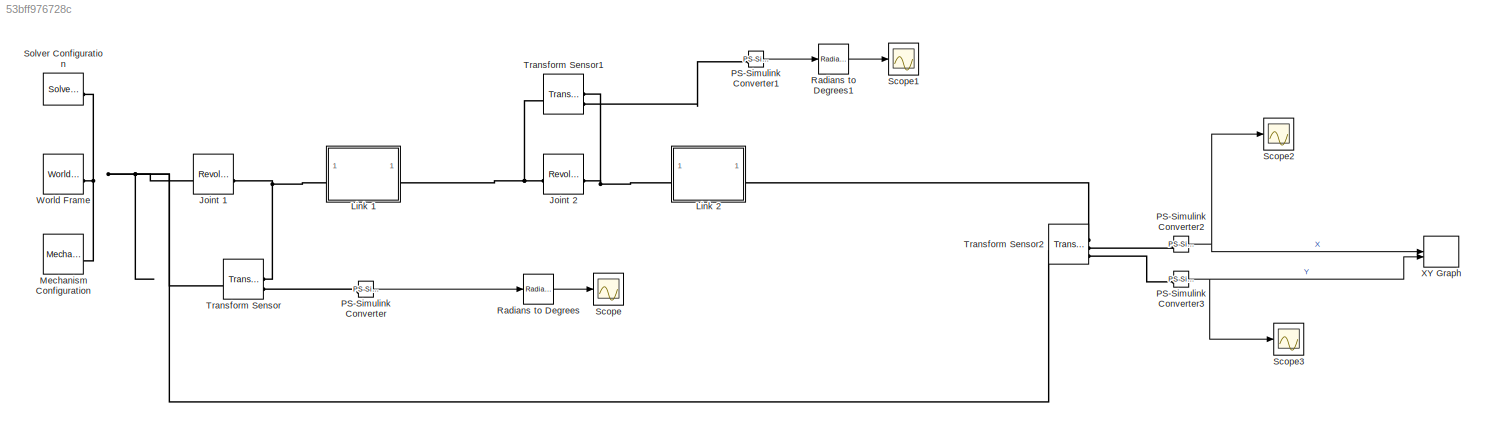
MODEL slx_53bff976728c
KIND model
CONFIG AbsTol = 1e-3
CONFIG EnableMultiTasking = on
CONFIG FixedStep = auto
CONFIG MaxStep = auto
CONFIG MinStep = auto
CONFIG RelTol = 1e-3
CONFIG SampleTimeConstraint = Unconstrained
CONFIG SolverName = VariableStepAuto
CONFIG StartTime = 0.0
CONFIG StopTime = 10.0
BLOCK [Reference] Joint 1  REF=sm_lib/Joints/Revolute Joint
  SourceBlock = sm_lib/Joints/Revolute Joint
  SourceType = Revolute Joint
BLOCK [Reference] Joint 2  REF=sm_lib/Joints/Revolute Joint
  SourceBlock = sm_lib/Joints/Revolute Joint
  SourceType = Revolute Joint
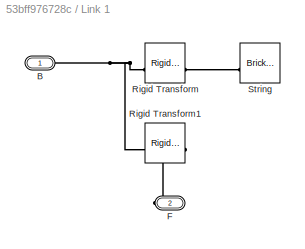
BLOCK [SubSystem] Link 1
BLOCK [PMIOPort] Link 1/B
  Side = Left
BLOCK [PMIOPort] Link 1/F
  Port = 2
  Side = Right
BLOCK [Reference] Link 1/Rigid Transform  REF=sm_lib/Frames and
Transforms/Rigid
Transform
  SourceBlock = sm_lib/Frames and\nTransforms/Rigid\nTransform
  SourceType = Rigid\nTransform
BLOCK [Reference] Link 1/Rigid Transform1  REF=sm_lib/Frames and
Transforms/Rigid
Transform
  SourceBlock = sm_lib/Frames and\nTransforms/Rigid\nTransform
  SourceType = Rigid\nTransform
BLOCK [Reference] Link 1/String  REF=sm_lib/Body Elements/Brick Solid
  SourceBlock = sm_lib/Body Elements/Brick Solid
  SourceType = Brick Solid
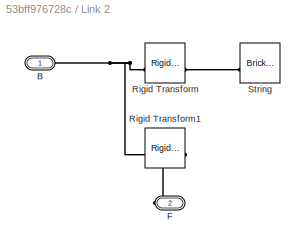
BLOCK [SubSystem] Link 2
BLOCK [PMIOPort] Link 2/B
  Side = Left
BLOCK [PMIOPort] Link 2/F
  Port = 2
  Side = Right
BLOCK [Reference] Link 2/Rigid Transform  REF=sm_lib/Frames and
Transforms/Rigid
Transform
  SourceBlock = sm_lib/Frames and\nTransforms/Rigid\nTransform
  SourceType = Rigid\nTransform
BLOCK [Reference] Link 2/Rigid Transform1  REF=sm_lib/Frames and
Transforms/Rigid
Transform
  SourceBlock = sm_lib/Frames and\nTransforms/Rigid\nTransform
  SourceType = Rigid\nTransform
BLOCK [Reference] Link 2/String  REF=sm_lib/Body Elements/Brick Solid
  SourceBlock = sm_lib/Body Elements/Brick Solid
  SourceType = Brick Solid
BLOCK [Reference] Mechanism Configuration  REF=sm_lib/Utilities/Mechanism
Configuration
  SourceBlock = sm_lib/Utilities/Mechanism\nConfiguration
  SourceType = Mechanism\nConfiguration
BLOCK [Reference] PS-Simulink Converter  REF=nesl_utility/PS-Simulink
Converter
  SourceBlock = nesl_utility/PS-Simulink\nConverter
  SourceType = PS-Simulink\nConverter
BLOCK [Reference] PS-Simulink Converter1  REF=nesl_utility/PS-Simulink
Converter
  SourceBlock = nesl_utility/PS-Simulink\nConverter
  SourceType = PS-Simulink\nConverter
BLOCK [Reference] PS-Simulink Converter2  REF=nesl_utility/PS-Simulink
Converter
  SourceBlock = nesl_utility/PS-Simulink\nConverter
  SourceType = PS-Simulink\nConverter
BLOCK [Reference] PS-Simulink Converter3  REF=nesl_utility/PS-Simulink
Converter
  SourceBlock = nesl_utility/PS-Simulink\nConverter
  SourceType = PS-Simulink\nConverter
BLOCK [Reference] Radians to Degrees  REF=simulink_extras/Transformations/Radians
to Degrees
  SourceBlock = simulink_extras/Transformations/Radians\nto Degrees
  SourceType = RadiansToDegrees
BLOCK [Reference] Radians to Degrees1  REF=simulink_extras/Transformations/Radians
to Degrees
  SourceBlock = simulink_extras/Transformations/Radians\nto Degrees
  SourceType = RadiansToDegrees
BLOCK [Scope] Scope
  Floating = off
  NumInputPorts = 1
  ScopeSpecificationString = Simulink.scopes.TimeScopeBlockCfg('CurrentConfiguration', extmgr.ConfigurationSet(extmgr.Configuration('Core','General UI',true),extmgr.Configuration('Core','Source UI',true),extmgr.Configuration('Sources','WiredSimulink',true),extmgr.Configuration('Visuals','Time Domain',true,'SerializedDisplays',{struct('MinYLimReal','45.00000','MaxYLimReal','65.00000','YLabelReal','','MinYLimMag','45.00000','Ma...<+1344ch>
BLOCK [Scope] Scope1
  Floating = off
  NumInputPorts = 1
  ScopeSpecificationString = Simulink.scopes.TimeScopeBlockCfg('CurrentConfiguration', extmgr.ConfigurationSet(extmgr.Configuration('Core','General UI',true),extmgr.Configuration('Core','Source UI',true),extmgr.Configuration('Sources','WiredSimulink',true,'DataLoggingVariableName','ScopeData1'),extmgr.Configuration('Visuals','Time Domain',true,'SerializedDisplays',{struct('MinYLimReal','25.00000','MaxYLimReal','45.00000','YLa...<+1411ch>
BLOCK [Scope] Scope2
  Floating = off
  NumInputPorts = 1
  ScopeSpecificationString = Simulink.scopes.TimeScopeBlockCfg('CurrentConfiguration', extmgr.ConfigurationSet(extmgr.Configuration('Core','General UI',true,'FigureColor',[1 1 1]),extmgr.Configuration('Core','Source UI',true),extmgr.Configuration('Sources','WiredSimulink',true,'DataLoggingVariableName','ScopeData2'),extmgr.Configuration('Visuals','Time Domain',true,'SerializedDisplays',{struct('MinYLimReal','0.58829','MaxYLim...<+1508ch>
BLOCK [Scope] Scope3
  Floating = off
  NumInputPorts = 1
  ScopeSpecificationString = Simulink.scopes.TimeScopeBlockCfg('CurrentConfiguration', extmgr.ConfigurationSet(extmgr.Configuration('Core','General UI',true,'FigureColor',[1 1 1]),extmgr.Configuration('Core','Source UI',true),extmgr.Configuration('Sources','WiredSimulink',true,'DataLoggingVariableName','ScopeData3'),extmgr.Configuration('Visuals','Time Domain',true,'SerializedDisplays',{struct('MinYLimReal','1.18298','MaxYLim...<+1508ch>
BLOCK [Reference] Solver Configuration  REF=nesl_utility/Solver
Configuration
  SourceBlock = nesl_utility/Solver\nConfiguration
  SourceType = Solver\nConfiguration
BLOCK [Reference] Transform Sensor  REF=sm_lib/Frames and
Transforms/Transform
Sensor
  SourceBlock = sm_lib/Frames and\nTransforms/Transform\nSensor
  SourceType = Transform\nSensor
BLOCK [Reference] Transform Sensor1  REF=sm_lib/Frames and
Transforms/Transform
Sensor
  SourceBlock = sm_lib/Frames and\nTransforms/Transform\nSensor
  SourceType = Transform\nSensor
BLOCK [Reference] Transform Sensor2  REF=sm_lib/Frames and
Transforms/Transform
Sensor
  SourceBlock = sm_lib/Frames and\nTransforms/Transform\nSensor
  SourceType = Transform\nSensor
BLOCK [Reference] World Frame  REF=sm_lib/Frames and
Transforms/World Frame
  SourceBlock = sm_lib/Frames and\nTransforms/World Frame
  SourceType = World Frame
BLOCK [Record] XY Graph
  CompatibilityTag = XY
  FileSettingsInternal = {"entries":[{"content":{"excelSettings":{"content":{},"type":"Streamout.ExcelSettings"}},"type":"Streamout.FileSettingStorage","uuid":""}],"packageUris":["http:\/\/schema.mathworks.com\/mf0\/streamout_blocks\/R2020a"],"version":"1.0"}
  Layout = [1 1]
  SignalsInternal = {"entries":[{"content":{"signals":[{"content":{"blockPath":[],"dimensions":[1],"domain":"","lineColor":"#a2142f","plots":[1],"port":1,"sid":[""],"signalID":19,"signalName":"X"},"type":"RecordBlkView.Signal","uuid":""},{"content":{"blockPath":[],"dimensions":[1],"domain":"","lineColor":"#139fff","plots":[1],"port":2,"sid":[""],"signalID":24,"signalName":"Y"},"type":"RecordBlkView.Signal","uuid":""}...<+146ch>
  VisualizationBindings = {"xyplotplugin":{"info":[{"series":[{"bindingParametersList":[{"parameter":"X-Axis","signalID":19,"signalName":"X"},{"parameter":"Y-Axis","signalID":24,"signalName":"Y"}],"seriesID":20789}],"subplotID":1}]}}
LINE PS-Simulink Converter1:1 -> Radians to Degrees1:1
NET PS-Simulink Converter2:1 -> Scope2:1, XY Graph:1
NET PS-Simulink Converter3:1 -> Scope3:1, XY Graph:2
LINE PS-Simulink Converter:1 -> Radians to Degrees:1
LINE Radians to Degrees1:1 -> Scope1:1
LINE Radians to Degrees:1 -> Scope:1
PNET net1: Joint 1:LConn1 -- Mechanism Configuration:RConn1 -- Solver Configuration:RConn1 -- Transform Sensor2:LConn1 -- Transform Sensor:LConn1 -- World Frame:RConn1
PNET net2: Joint 1:RConn1 -- Link 1:LConn1 -- Transform Sensor:RConn1
PNET net3: Joint 2:LConn1 -- Link 1:RConn1 -- Transform Sensor1:LConn1
PNET net4: Joint 2:RConn1 -- Link 2:LConn1 -- Transform Sensor1:RConn1
PNET net5: Link 1/B:RConn1 -- Link 1/Rigid Transform1:LConn1 -- Link 1/Rigid Transform:LConn1
PLINE Link 1/F:RConn1 -- Link 1/Rigid Transform1:RConn1
PLINE Link 1/Rigid Transform:RConn1 -- Link 1/String:RConn1
PNET net6: Link 2/B:RConn1 -- Link 2/Rigid Transform1:LConn1 -- Link 2/Rigid Transform:LConn1
PLINE Link 2/F:RConn1 -- Link 2/Rigid Transform1:RConn1
PLINE Link 2/Rigid Transform:RConn1 -- Link 2/String:RConn1
PLINE Link 2:RConn1 -- Transform Sensor2:RConn1
PLINE PS-Simulink Converter1:LConn1 -- Transform Sensor1:RConn2
PLINE PS-Simulink Converter2:LConn1 -- Transform Sensor2:RConn2
PLINE PS-Simulink Converter3:LConn1 -- Transform Sensor2:RConn3
PLINE PS-Simulink Converter:LConn1 -- Transform Sensor:RConn2
note: NET lines group one-source signal fan-out (src -> all destinations, sorted); 1:1 wires keep LINE; PNET lines group multi-terminal physical nets as a canonical sorted terminal list (undirected conserving connections); 2-terminal nets keep the pairwise PLINE form
